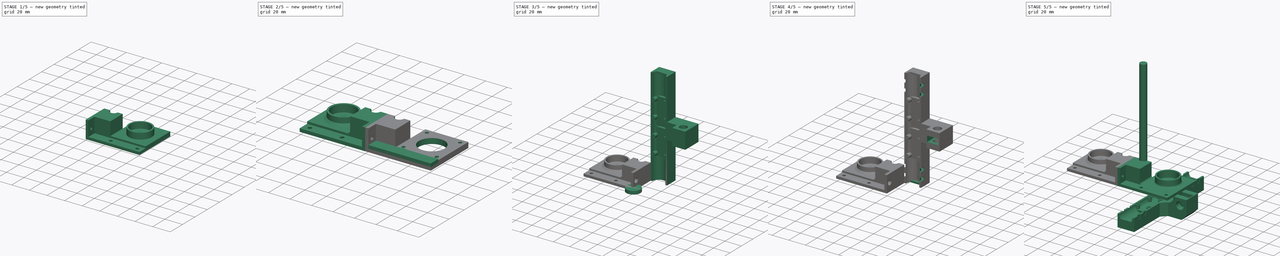
[diagram: build sequence overview — one tinted view per stage of 5, left to right]
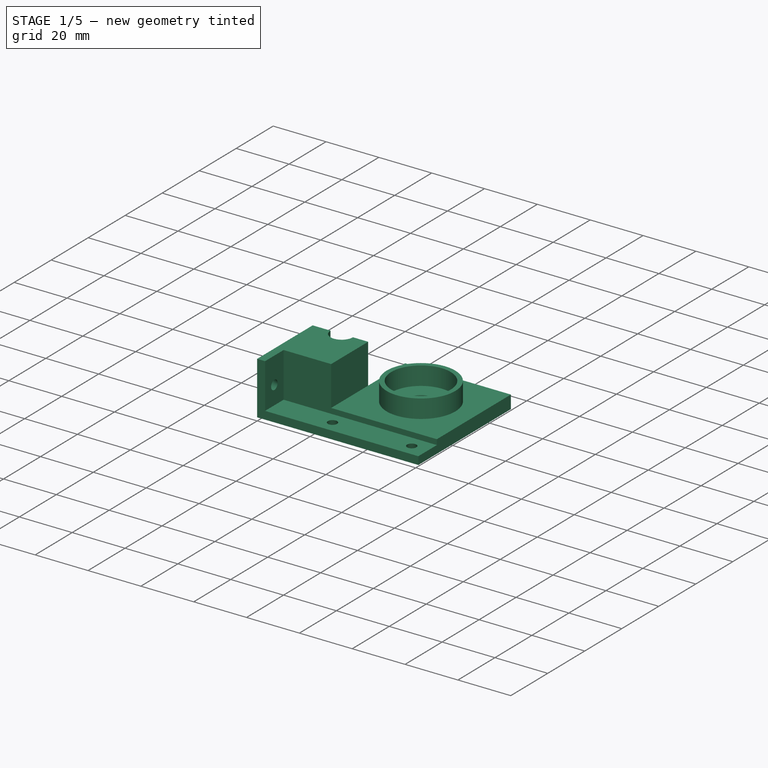
[diagram: stage 1 of 5 — iso view after this stage's code; geometry added in this stage tinted green]
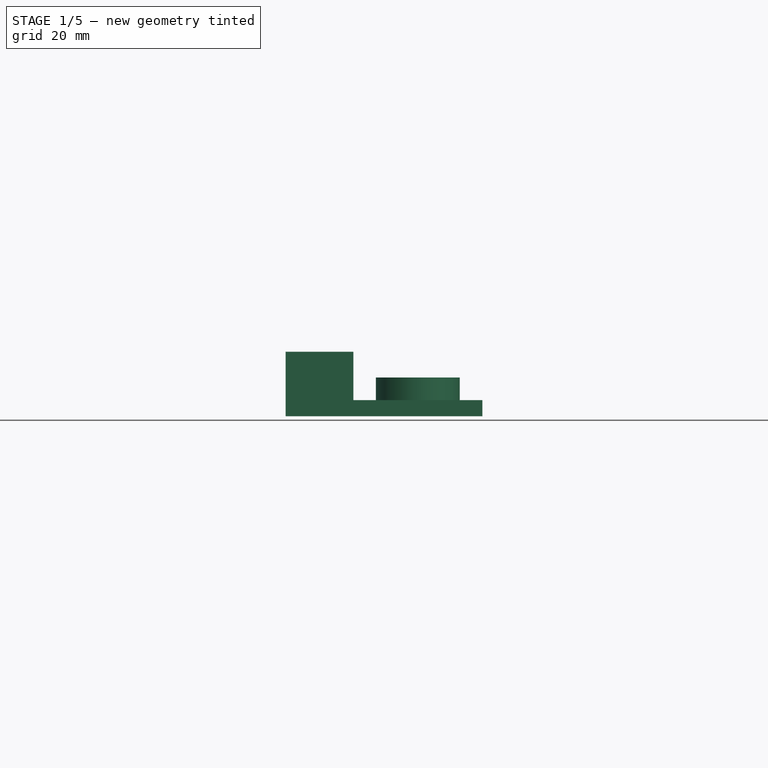
[diagram: stage 1 of 5 — front view after this stage's code; geometry added in this stage tinted green]
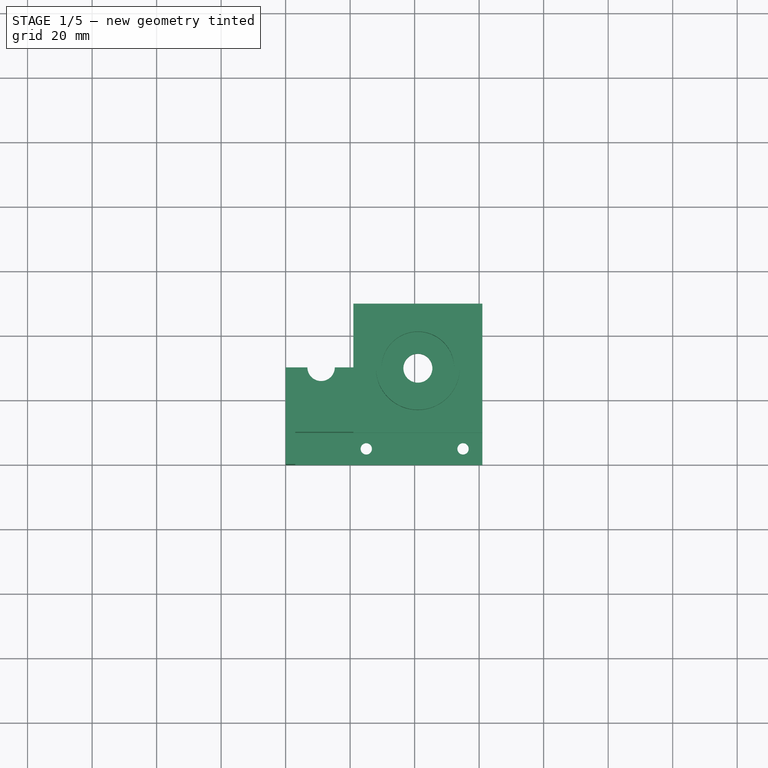
[diagram: stage 1 of 5 — top view after this stage's code; geometry added in this stage tinted green]
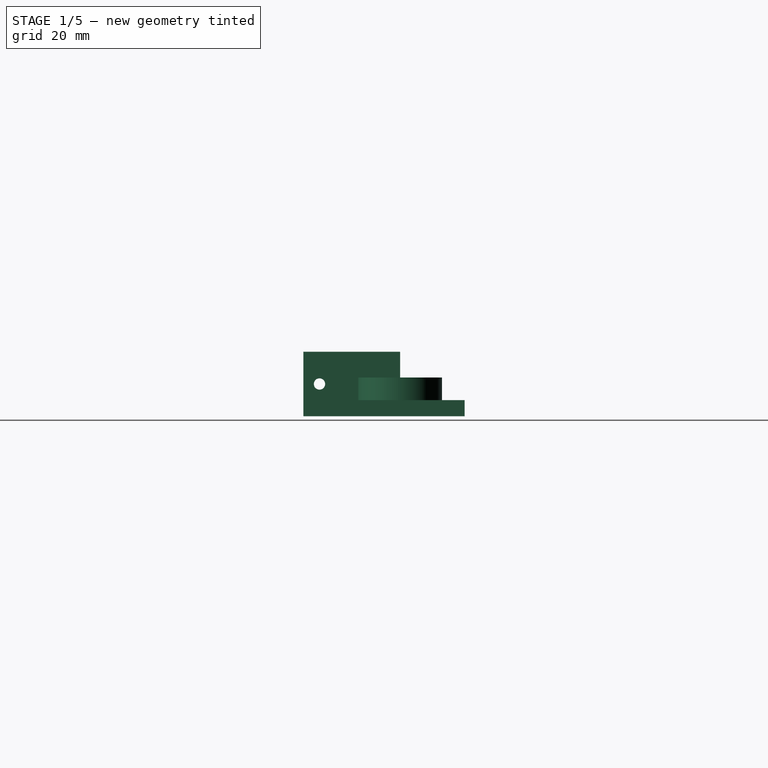
[diagram: stage 1 of 5 — right view after this stage's code; geometry added in this stage tinted green]
FCSTD DOCUMENT  (FreeCAD 0.15R4671 (Git))
Label: x-axis
License: CC-BY 3.0
LicenseURL: http://creativecommons.org/licenses/by/3.0/
objects: Part::Cut×38, Part::Cylinder×31, Part::Box×9, Part::Cone×6, Part::Chamfer×6, Sketcher::SketchObject×5, PartDesign::Pad×5, Part::Fillet×3, Part::MultiFuse×3, Part::Mirroring×2
note: 113 computed .brp shape members not serialized (recipe doc carries the construction recipe); baked Part::Feature solids carry a one-line shape summary decoded from their .brp

FEATURE [Part::Box] Box009  label="espai-fusta001"
  Height = 3
  Length = 58
  Placement = pos=(3,0,3) rot=(0,0,1;0rad)
  Width = 10
FEATURE [Part::Cone] Cone003  label="Cone-forat-cargol004"
  Angle = 360
  Height = 3
  Placement = pos=(25,5,0) rot=(0,0,1;0rad)
  Radius1 = 3
  Radius2 = 1.75
FEATURE [Part::Cone] Cone004  label="Cone-forat-cargol005"
  Angle = 360
  Height = 3
  Placement = pos=(55,5,0) rot=(0,0,1;0rad)
  Radius1 = 3
  Radius2 = 1.75
FEATURE [Part::Cylinder] Cylinder027  label="Cyl-brida-ext005"
  Angle = 360
  Height = 4
  Radius = 8
FEATURE [Part::Cone] Cone005  label="Cone-forat-cargol006"
  Angle = 360
  Height = 3
  Placement = pos=(0,5,10) rot=(0,1,0;1.5708rad)
  Radius1 = 3
  Radius2 = 1.75
FEATURE [Part::Cylinder] Cylinder028  label="Cyl-brida-int005"
  Angle = 360
  Height = 4
  Radius = 6
FEATURE [Part::Cut] Cut035  label="espai-brida007"
  Base = -> Cylinder027
  Placement = pos=(10,30,4) rot=(0,0,1;0rad)
  Tool = -> Cylinder028
FEATURE [Sketcher::SketchObject] Sketch003  label="Sketch-perfil-retalla001"
  Placement = pos=(0,0,5) rot=(0,0,1;0rad)
  sketch-geometry (6):
    g0: LineSegment StartX=3 StartY=10 StartZ=0 EndX=21 EndY=10 EndZ=0
    g1: LineSegment StartX=61 StartY=50 StartZ=0 EndX=61 EndY=0 EndZ=0
    g2: LineSegment StartX=61 StartY=0 StartZ=0 EndX=3 EndY=0 EndZ=0
    g3: LineSegment StartX=3 StartY=0 StartZ=0 EndX=3 EndY=10 EndZ=0
    g4: LineSegment StartX=21 StartY=50 StartZ=0 EndX=61 EndY=50 EndZ=0
    g5: LineSegment StartX=21 StartY=50 StartZ=0 EndX=21 EndY=10 EndZ=0
  constraints (18):
    c: Coincident(g1,g2)
    c: Coincident(g2,g3)
    c: Coincident(g3,g0)
    c: Horizontal(g0)
    c: Horizontal(g2)
    c: Vertical(g1)
    c: Vertical(g3)
    c: PointOnObject(g1,g-1)
    c: DistanceX(g-1,g2) = 3
    c: DistanceY(g3) = 10
    c: DistanceY(g1) = -50
    c: DistanceX(g2) = -58
    c: Horizontal(g4)
    c: Coincident(g4,g1)
    c: DistanceX(g4) = 40
    c: Vertical(g5)
    c: Coincident(g5,g4)
    c: Coincident(g5,g0)
FEATURE [PartDesign::Pad] Pad003  label="Pad-perfil-retalla001"
  Length = 15
  Length2 = 100
  Placement = pos=(0,0,5) rot=(0,0,1;0rad)
  Sketch = -> Sketch003
  Type = 0
FEATURE [Part::Cut] Cut036  label="espai-brida008"
  Base = -> Cylinder027
  Placement = pos=(10,30,12) rot=(0,0,1;0rad)
  Tool = -> Cylinder028
FEATURE [Sketcher::SketchObject] Sketch004  label="Sketch-perfil-base001"
  sketch-geometry (9):
    g0: Circle CenterX=41 CenterY=30 CenterZ=0 NormalX=0 NormalY=0 NormalZ=1 Radius=4.5
    g1: ArcOfCircle CenterX=11 CenterY=30 CenterZ=0 NormalX=0 NormalY=0 NormalZ=1 Radius=4.25 StartAngle=3.14159 EndAngle=6.28319
    g2: LineSegment StartX=6.75 StartY=30 StartZ=0 EndX=0 EndY=30 EndZ=0
    g3: LineSegment StartX=0 StartY=30 StartZ=0 EndX=0 EndY=0 EndZ=0
    g4: LineSegment StartX=0 StartY=0 StartZ=0 EndX=61 EndY=0 EndZ=0
    g5: LineSegment StartX=15.25 StartY=30 StartZ=0 EndX=21 EndY=30 EndZ=0
    g6: LineSegment StartX=21 StartY=30 StartZ=0 EndX=21 EndY=50 EndZ=0
    g7: LineSegment StartX=21 StartY=50 StartZ=0 EndX=61 EndY=50 EndZ=0
    g8: LineSegment StartX=61 StartY=50 StartZ=0 EndX=61 EndY=0 EndZ=0
  constraints (27):
    c: Radius(g0) = 4.5
    c: Radius(g1) = 4.25
    c: DistanceX(g1,g0) = 30
    c: Coincident(g2,g1)
    c: PointOnObject(g2,g-2)
    c: Horizontal(g2)
    c: Coincident(g3,g2)
    c: Coincident(g3,g-1)
    c: Coincident(g4,g-1)
    c: Horizontal(g4)
    c: Coincident(g5,g1)
    c: Horizontal(g5)
    c: Coincident(g6,g5)
    c: Vertical(g6)
    c: Coincident(g7,g6)
    c: Horizontal(g7)
    c: Coincident(g8,g7)
    c: Vertical(g8)
    c: Coincident(g4,g8)
    c: DistanceY(g3) = -30
    c: DistanceY(g-1,g1) = 30
    c: DistanceY(g-1,g0) = 30
    c: DistanceX(g7) = 40
    c: DistanceX(g0,g7) = 20
    c: DistanceX(g1,g2) = -11
    c: DistanceY(g7,g4) = -50
    c: DistanceY(g-1,g5) = 30
FEATURE [PartDesign::Pad] Pad004  label="Pad-perfil-base001"
  Length = 20
  Length2 = 100
  Sketch = -> Sketch004
  Type = 0
FEATURE [Part::Cut] Cut034
  Base = -> Pad004
  Tool = -> Pad003
FEATURE [Part::Cut] Cut033
  Base = -> Cut034
  Tool = -> Cut035
FEATURE [Part::Cut] Cut032
  Base = -> Cut033
  Tool = -> Cut036
FEATURE [Part::Cut] Cut030
  Base = -> Cut032
  Tool = -> Cone005
FEATURE [Part::Cut] Cut029
  Base = -> Cut030
  Tool = -> Cone003
FEATURE [Part::Cut] Cut028  label="forma-amb-forats001"
  Base = -> Cut029
  Tool = -> Cone004
FEATURE [Part::Cut] Cut031  label="y-end-idler-basic"
  Base = -> Cut028
  Tool = -> Box009
FEATURE [Part::Cylinder] Cylinder029  label="espai-608-int"
  Angle = 360
  Height = 7
  Radius = 11.25
FEATURE [Part::Cylinder] Cylinder030  label="espai-608-ext"
  Angle = 360
  Height = 7
  Radius = 13
FEATURE [Part::Cut] Cut037  label="espai-608"
  Base = -> Cylinder030
  Placement = pos=(41,30,5) rot=(0,0,1;0rad)
  Tool = -> Cylinder029
FEATURE [Part::MultiFuse] Fusion002  label="y-end-idler-no-arrod"
  Shapes = -> [Cut031,Cut037]
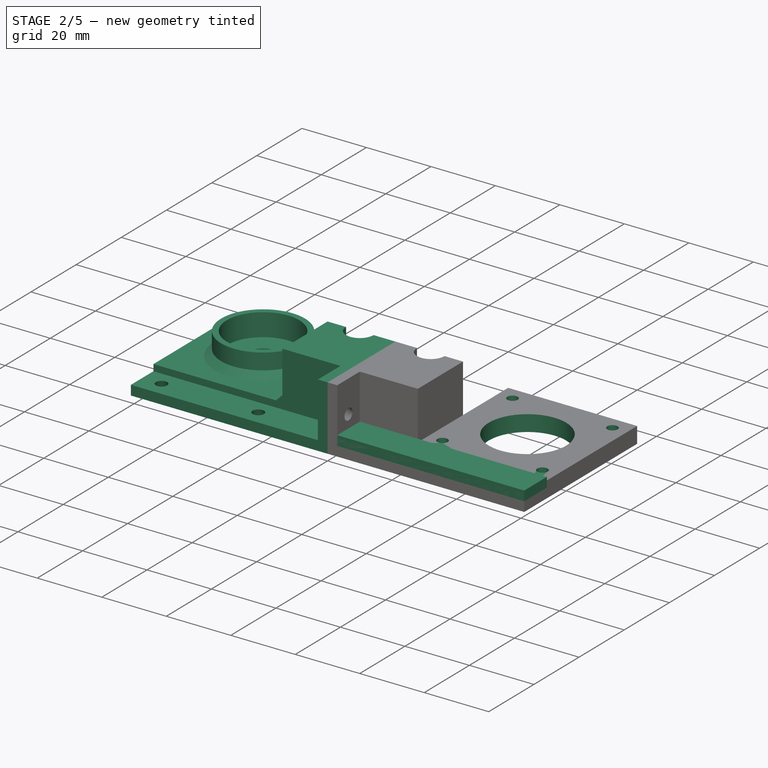
[diagram: stage 2 of 5 — iso view after this stage's code; geometry added in this stage tinted green]
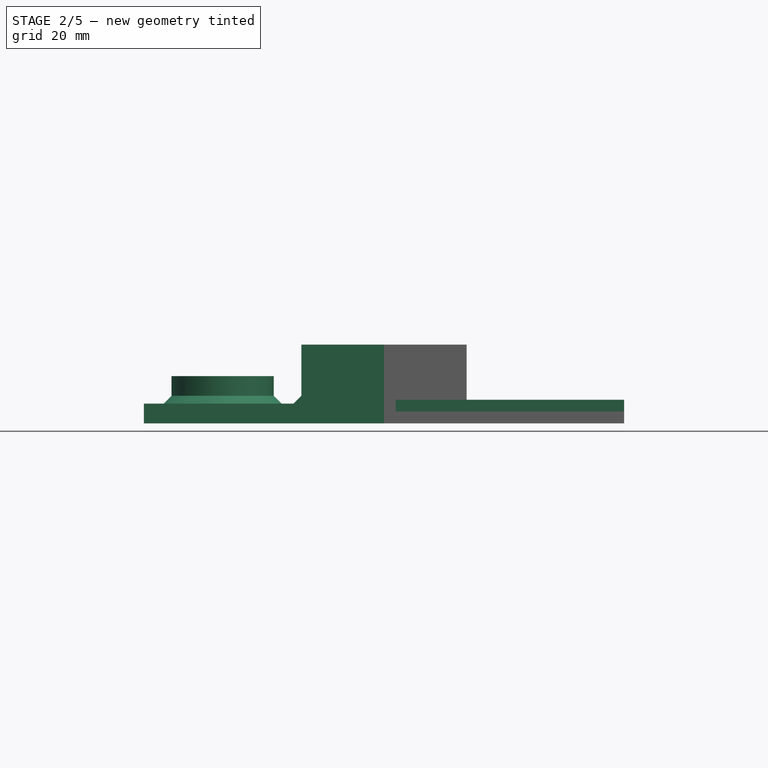
[diagram: stage 2 of 5 — front view after this stage's code; geometry added in this stage tinted green]
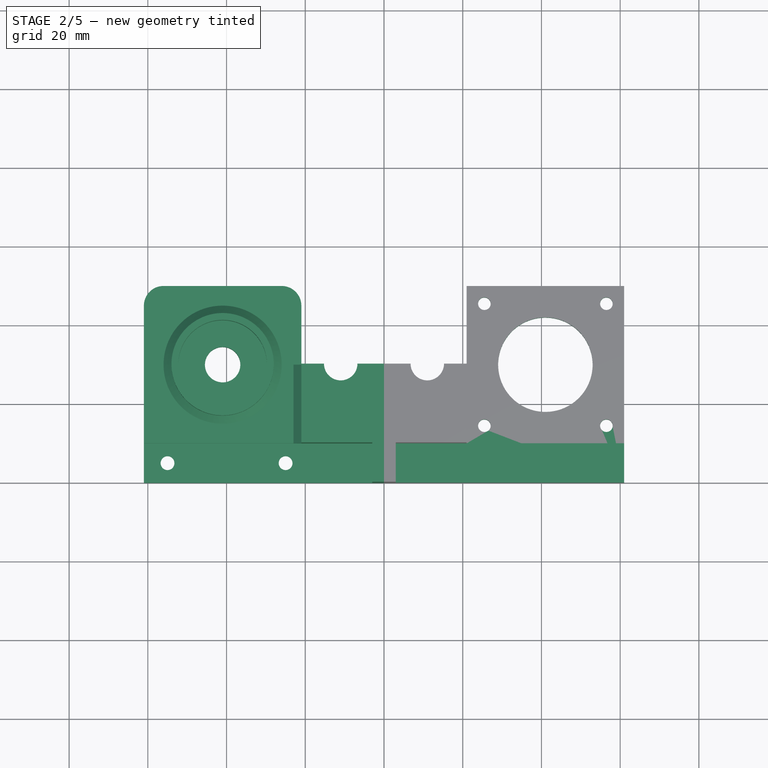
[diagram: stage 2 of 5 — top view after this stage's code; geometry added in this stage tinted green]
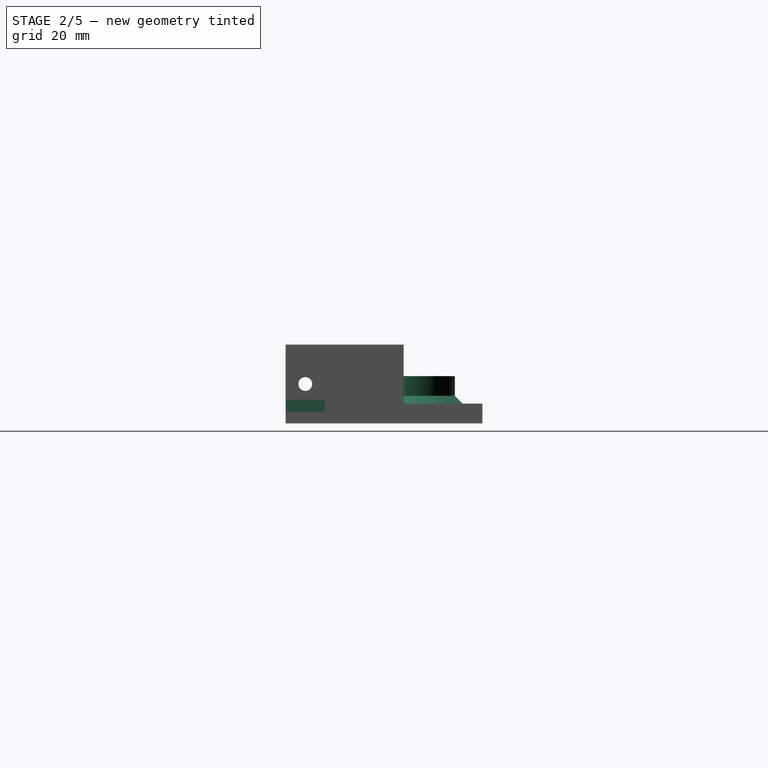
[diagram: stage 2 of 5 — right view after this stage's code; geometry added in this stage tinted green]
FEATURE [Sketcher::SketchObject] Sketch  label="Sketch-perfil-base"
  sketch-geometry (15):
    g0: Circle CenterX=41 CenterY=30 CenterZ=0 NormalX=0 NormalY=0 NormalZ=1 Radius=12
    g1: ArcOfCircle CenterX=11 CenterY=30 CenterZ=0 NormalX=0 NormalY=0 NormalZ=1 Radius=4.25 StartAngle=3.14159 EndAngle=6.28319
    g2: LineSegment StartX=6.75 StartY=30 StartZ=0 EndX=0 EndY=30 EndZ=0
    g3: LineSegment StartX=0 StartY=30 StartZ=0 EndX=0 EndY=0 EndZ=0
    g4: LineSegment StartX=0 StartY=0 StartZ=0 EndX=61 EndY=0 EndZ=0
    g5: LineSegment StartX=15.25 StartY=30 StartZ=0 EndX=21 EndY=30 EndZ=0
    g6: LineSegment StartX=21 StartY=30 StartZ=0 EndX=21 EndY=50 EndZ=0
    g7: LineSegment StartX=21 StartY=50 StartZ=0 EndX=61 EndY=50 EndZ=0
    g8: LineSegment StartX=61 StartY=50 StartZ=0 EndX=61 EndY=0 EndZ=0
    g9: Circle CenterX=25.5003 CenterY=45.5003 CenterZ=0 NormalX=0 NormalY=0 NormalZ=1 Radius=1.6
    g10: Circle CenterX=25.4997 CenterY=14.5003 CenterZ=0 NormalX=0 NormalY=0 NormalZ=1 Radius=1.6
    g11: Circle CenterX=56.4997 CenterY=14.4997 CenterZ=0 NormalX=0 NormalY=0 NormalZ=1 Radius=1.6
    g12: Circle CenterX=56.5003 CenterY=45.4997 CenterZ=0 NormalX=0 NormalY=0 NormalZ=1 Radius=1.6
    g13: LineSegment [constr] StartX=25.4997 StartY=14.5003 StartZ=0 EndX=56.5003 EndY=45.4997 EndZ=0
    g14: LineSegment [constr] StartX=25.5003 StartY=45.5003 StartZ=0 EndX=56.4997 EndY=14.4997 EndZ=0
  constraints (43):
    c: Radius(g0) = 12
    c: Radius(g1) = 4.25
    c: DistanceX(g1,g0) = 30
    c: Coincident(g2,g1)
    c: PointOnObject(g2,g-2)
    c: Horizontal(g2)
    c: Coincident(g3,g2)
    c: Coincident(g3,g-1)
    c: Coincident(g4,g-1)
    c: Horizontal(g4)
    c: Coincident(g5,g1)
    c: Horizontal(g5)
    c: Coincident(g6,g5)
    c: Vertical(g6)
    c: Coincident(g7,g6)
    c: Horizontal(g7)
    c: Coincident(g8,g7)
    c: Vertical(g8)
    c: Coincident(g4,g8)
    c: DistanceY(g3) = -30
    c: DistanceY(g-1,g1) = 30
    c: DistanceY(g-1,g0) = 30
    c: DistanceX(g7) = 40
    c: DistanceX(g0,g7) = 20
    c: DistanceX(g1,g2) = -11
    c: DistanceY(g7,g4) = -50
    c: DistanceY(g-1,g5) = 30
    c: Radius(g9) = 1.6
    c: Equal(g9,g10)
    c: Equal(g11,g9)
    c: Equal(g12,g9)
    c: Coincident(g13,g10)
    c: Coincident(g13,g12)
    c: PointOnObject(g0,g13)
    c: Coincident(g14,g11)
    c: Coincident(g14,g9)
    c: PointOnObject(g0,g14)
    c: Perpendicular(g13,g14)
    c: Equal(g14,g13)
    c: DistanceX(g9,g12) = 31
    c: DistanceY(g11,g12) = 31
    c: Symmetric(g11,g9,g13)
    c: Symmetric(g10,g12,g14)
FEATURE [PartDesign::Pad] Pad  label="Pad-perfil-base"
  Length = 20
  Length2 = 100
  Sketch = -> Sketch
  Type = 0
FEATURE [Sketcher::SketchObject] Sketch001  label="Sketch-perfil-retalla"
  Placement = pos=(0,0,5) rot=(0,0,1;0rad)
  sketch-geometry (6):
    g0: LineSegment StartX=3 StartY=10 StartZ=0 EndX=21 EndY=10 EndZ=0
    g1: LineSegment StartX=61 StartY=50 StartZ=0 EndX=61 EndY=0 EndZ=0
    g2: LineSegment StartX=61 StartY=0 StartZ=0 EndX=3 EndY=0 EndZ=0
    g3: LineSegment StartX=3 StartY=0 StartZ=0 EndX=3 EndY=10 EndZ=0
    g4: LineSegment StartX=21 StartY=50 StartZ=0 EndX=61 EndY=50 EndZ=0
    g5: LineSegment StartX=21 StartY=50 StartZ=0 EndX=21 EndY=10 EndZ=0
  constraints (18):
    c: Coincident(g1,g2)
    c: Coincident(g2,g3)
    c: Coincident(g3,g0)
    c: Horizontal(g0)
    c: Horizontal(g2)
    c: Vertical(g1)
    c: Vertical(g3)
    c: PointOnObject(g1,g-1)
    c: DistanceX(g-1,g2) = 3
    c: DistanceY(g3) = 10
    c: DistanceY(g1) = -50
    c: DistanceX(g2) = -58
    c: Horizontal(g4)
    c: Coincident(g4,g1)
    c: DistanceX(g4) = 40
    c: Vertical(g5)
    c: Coincident(g5,g4)
    c: Coincident(g5,g0)
FEATURE [PartDesign::Pad] Pad001  label="Pad-perfil-retalla"
  Length = 15
  Length2 = 100
  Placement = pos=(0,0,5) rot=(0,0,1;0rad)
  Sketch = -> Sketch001
  Type = 0
FEATURE [Part::Cut] Cut
  Base = -> Pad
  Tool = -> Pad001
FEATURE [Part::Cylinder] Cylinder  label="Cyl-brida-ext"
  Angle = 360
  Height = 4
  Radius = 8
FEATURE [Part::Cylinder] Cylinder001  label="Cyl-brida-int"
  Angle = 360
  Height = 4
  Radius = 6
FEATURE [Part::Cut] Cut001  label="espai-brida001"
  Base = -> Cylinder
  Placement = pos=(10,30,4) rot=(0,0,1;0rad)
  Tool = -> Cylinder001
FEATURE [Part::Cut] Cut002  label="espai-brida002"
  Base = -> Cylinder
  Placement = pos=(10,30,12) rot=(0,0,1;0rad)
  Tool = -> Cylinder001
FEATURE [Part::Cut] Cut003
  Base = -> Cut
  Tool = -> Cut001
FEATURE [Part::Cut] Cut004
  Base = -> Cut003
  Tool = -> Cut002
FEATURE [Part::Cone] Cone  label="Cone-forat-cargol001"
  Angle = 360
  Height = 3
  Placement = pos=(0,5,10) rot=(0,1,0;1.5708rad)
  Radius1 = 3
  Radius2 = 1.75
FEATURE [Part::Cone] Cone001  label="Cone-forat-cargol002"
  Angle = 360
  Height = 3
  Placement = pos=(25,5,0) rot=(0,0,1;0rad)
  Radius1 = 3
  Radius2 = 1.75
FEATURE [Part::Cone] Cone002  label="Cone-forat-cargol003"
  Angle = 360
  Height = 3
  Placement = pos=(55,5,0) rot=(0,0,1;0rad)
  Radius1 = 3
  Radius2 = 1.75
FEATURE [Part::Cut] Cut005
  Base = -> Cut004
  Tool = -> Cone
FEATURE [Part::Cut] Cut006
  Base = -> Cut005
  Tool = -> Cone001
FEATURE [Part::Cut] Cut007  label="forma-amb-forats"
  Base = -> Cut006
  Tool = -> Cone002
FEATURE [Part::Box] Box008  label="espai-fusta"
  Height = 3
  Length = 58
  Placement = pos=(3,0,3) rot=(0,0,1;0rad)
  Width = 10
FEATURE [Part::Chamfer] Chamfer004
  Base = -> Fusion002
  Edges = 1 edges r=2: [Edge53]
FEATURE [Part::Chamfer] Chamfer005  label="y-end-idler-no-arrod-del-tot"
  Base = -> Chamfer004
  Edges = 1 edges r=2: [Edge31]
FEATURE [Part::Fillet] Fillet003  label="y-end-idler"
  Base = -> Chamfer005
  Edges = 2 edges r=5: [Edge21,Edge36]
FEATURE [Part::Mirroring] Part__Mirroring001  label="y-end-idler (Mirror #2)"
  Base = (0,0,0)
  Normal = (1,0,0)
  Source = -> Fillet003
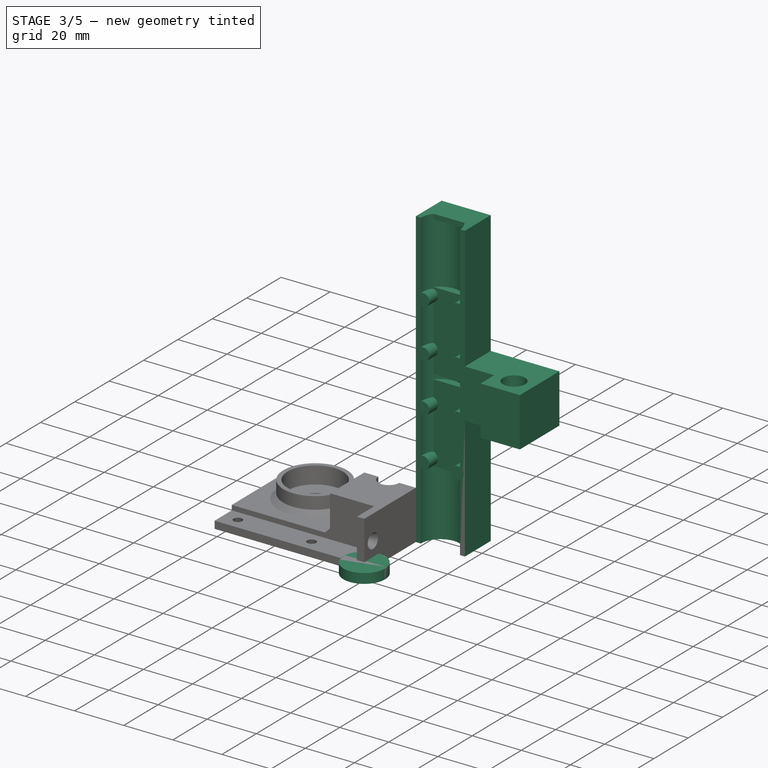
[diagram: stage 3 of 5 — iso view after this stage's code; geometry added in this stage tinted green]
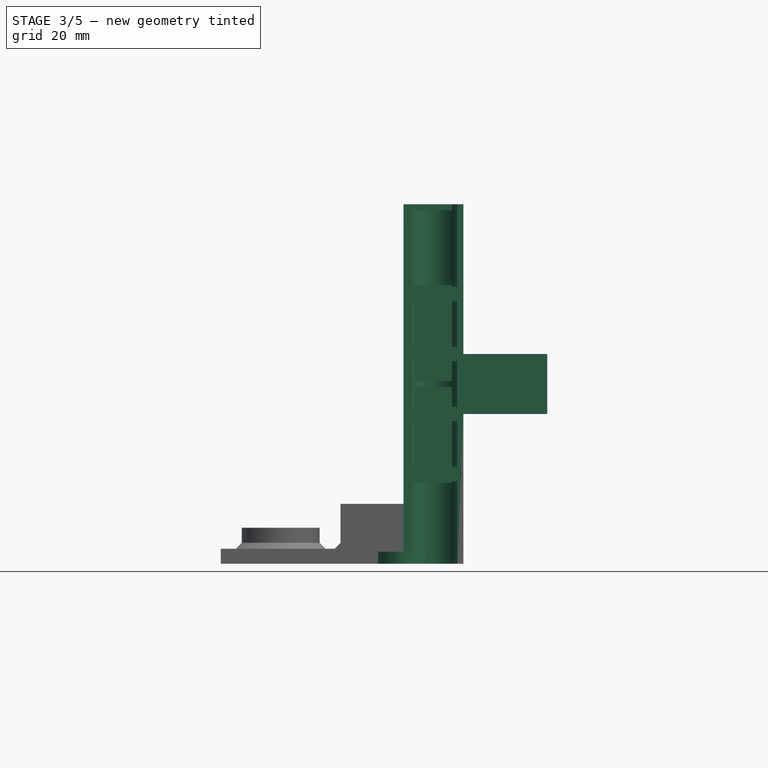
[diagram: stage 3 of 5 — front view after this stage's code; geometry added in this stage tinted green]
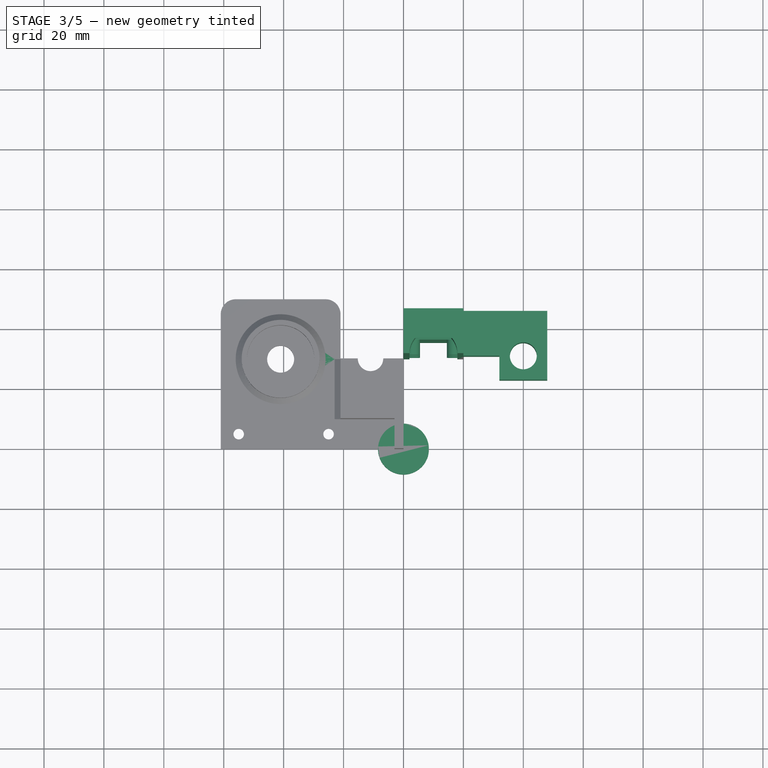
[diagram: stage 3 of 5 — top view after this stage's code; geometry added in this stage tinted green]
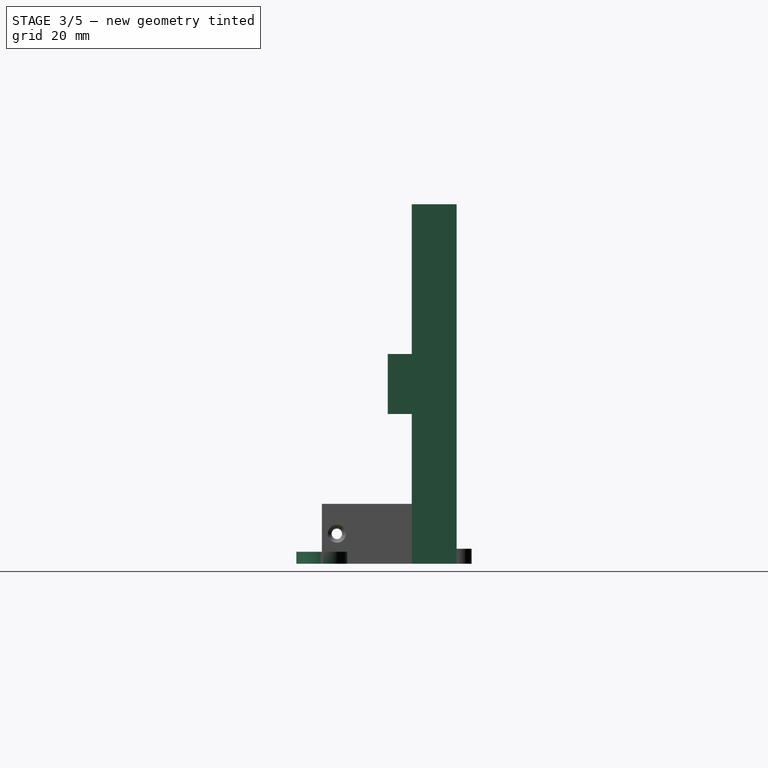
[diagram: stage 3 of 5 — right view after this stage's code; geometry added in this stage tinted green]
FEATURE [Sketcher::SketchObject] Sketch002  label="Sketch-perfil-base-carro"
  sketch-geometry (9):
    g0: Circle CenterX=40 CenterY=30 CenterZ=0 NormalX=0 NormalY=0 NormalZ=1 Radius=4.5
    g1: ArcOfCircle CenterX=10 CenterY=30 CenterZ=0 NormalX=0 NormalY=0 NormalZ=1 Radius=8 StartAngle=0 EndAngle=3.14159
    g2: LineSegment StartX=0 StartY=45 StartZ=0 EndX=48 EndY=45 EndZ=0
    g3: LineSegment StartX=48 StartY=45 StartZ=0 EndX=48 EndY=22 EndZ=0
    g4: LineSegment StartX=0 StartY=45 StartZ=0 EndX=0 EndY=30 EndZ=0
    g5: LineSegment StartX=0 StartY=30 StartZ=0 EndX=2 EndY=30 EndZ=0
    g6: LineSegment StartX=18 StartY=30 StartZ=0 EndX=32 EndY=30 EndZ=0
    g7: LineSegment StartX=32 StartY=30 StartZ=0 EndX=32 EndY=22 EndZ=0
    g8: LineSegment StartX=32 StartY=22 StartZ=0 EndX=48 EndY=22 EndZ=0
  constraints (28):
    c: Radius(g0) = 4.5
    c: Radius(g1) = 8
    c: DistanceX(g1,g0) = 30
    c: Horizontal(g2)
    c: Coincident(g3,g2)
    c: Vertical(g3)
    c: DistanceY(g-1,g1) = 30
    c: DistanceY(g-1,g0) = 30
    c: DistanceX(g-1,g1) = 10
    c: PointOnObject(g2,g-2)
    c: Coincident(g4,g2)
    c: PointOnObject(g4,g-2)
    c: Coincident(g5,g4)
    c: Coincident(g5,g1)
    c: Coincident(g6,g1)
    c: Horizontal(g6)
    c: Coincident(g7,g6)
    c: Vertical(g7)
    c: Coincident(g8,g7)
    c: Coincident(g8,g3)
    c: Horizontal(g8)
    c: DistanceY(g2,g4) = -15
    c: Horizontal(g5)
    c: DistanceY(g-1,g4) = 30
    c: DistanceY(g3) = -23
    c: DistanceX(g0,g2) = 8
    c: DistanceX(g0,g7) = -8
    c: DistanceY(g-1,g1) = 30
FEATURE [PartDesign::Pad] Pad002
  Length = 120
  Length2 = 100
  Sketch = -> Sketch002
  Type = 0
FEATURE [Part::Cylinder] Cylinder003  label="Cyl-brida-int001"
  Angle = 360
  Height = 4
  Radius = 8.5
FEATURE [Part::Box] Box  label="Cube-treu-espai"
  Height = 50
  Length = 30
  Placement = pos=(20,18,0) rot=(0,0,1;0rad)
  Width = 28
FEATURE [Part::Box] Box001  label="Cube-treu-espai001"
  Height = 50
  Length = 30
  Placement = pos=(20,18,70) rot=(0,0,1;0rad)
  Width = 28
FEATURE [Part::Cut] Cut009
  Base = -> Pad002
  Tool = -> Box
FEATURE [Part::Cut] Cut010
  Base = -> Cut009
  Tool = -> Box001
FEATURE [Part::Box] Box003  label="barrera-rodament001"
  Height = 2
  Length = 20
  Placement = pos=(0,35,118) rot=(0,0,1;0rad)
  Width = 5
FEATURE [Part::Box] Box004  label="barrera-rodament002"
  Height = 32
  Length = 20
  Placement = pos=(0,35,27) rot=(0,0,1;0rad)
  Width = 5
FEATURE [Part::Box] Box007  label="barrera-rodament003"
  Height = 32
  Length = 20
  Placement = pos=(0,35,61) rot=(0,0,1;0rad)
  Width = 5
FEATURE [Part::Cylinder] Cylinder012  label="col-cargol-M3-001"
  Angle = 360
  Height = 15
  Placement = pos=(3,30,30) rot=(-1,0,0;1.5708rad)
  Radius = 2.5
FEATURE [Part::Cylinder] Cylinder013  label="col-cargol-M3-002"
  Angle = 360
  Height = 15
  Placement = pos=(17,30,30) rot=(-1,0,0;1.5708rad)
  Radius = 2.5
FEATURE [Part::Cylinder] Cylinder015  label="col-cargol-M3-003"
  Angle = 360
  Height = 15
  Placement = pos=(17,30,50) rot=(-1,0,0;1.5708rad)
  Radius = 2.5
FEATURE [Part::Cylinder] Cylinder017  label="col-cargol-M3-004"
  Angle = 360
  Height = 15
  Placement = pos=(3,30,50) rot=(-1,0,0;1.5708rad)
  Radius = 2.5
FEATURE [Part::Cylinder] Cylinder019  label="col-cargol-M3-005"
  Angle = 360
  Height = 15
  Placement = pos=(3,30,90) rot=(-1,0,0;1.5708rad)
  Radius = 2.5
FEATURE [Part::Cylinder] Cylinder020  label="col-cargol-M3-006"
  Angle = 360
  Height = 15
  Placement = pos=(17,30,90) rot=(-1,0,0;1.5708rad)
  Radius = 2.5
FEATURE [Part::Cylinder] Cylinder021  label="col-cargol-M3-007"
  Angle = 360
  Height = 15
  Placement = pos=(17,30,70) rot=(-1,0,0;1.5708rad)
  Radius = 2.5
FEATURE [Part::Cylinder] Cylinder022  label="col-cargol-M3-008"
  Angle = 360
  Height = 15
  Placement = pos=(3,30,70) rot=(-1,0,0;1.5708rad)
  Radius = 2.5
FEATURE [Part::Cut] Cut027
  Base = -> Cut007
  Tool = -> Box008
FEATURE [Part::Chamfer] Chamfer003
  Base = -> Cut027
  Edges = 1 edges r=2: [Edge57]
FEATURE [Part::Fillet] Fillet  label="y-end-motor"
  Base = -> Chamfer003
  Edges = 2 edges r=5: [Edge39,Edge80]
FEATURE [Part::Mirroring] Part__Mirroring  label="y-end-motor (Mirror #2)"
  Base = (0,0,0)
  Normal = (1,0,0)
  Source = -> Fillet
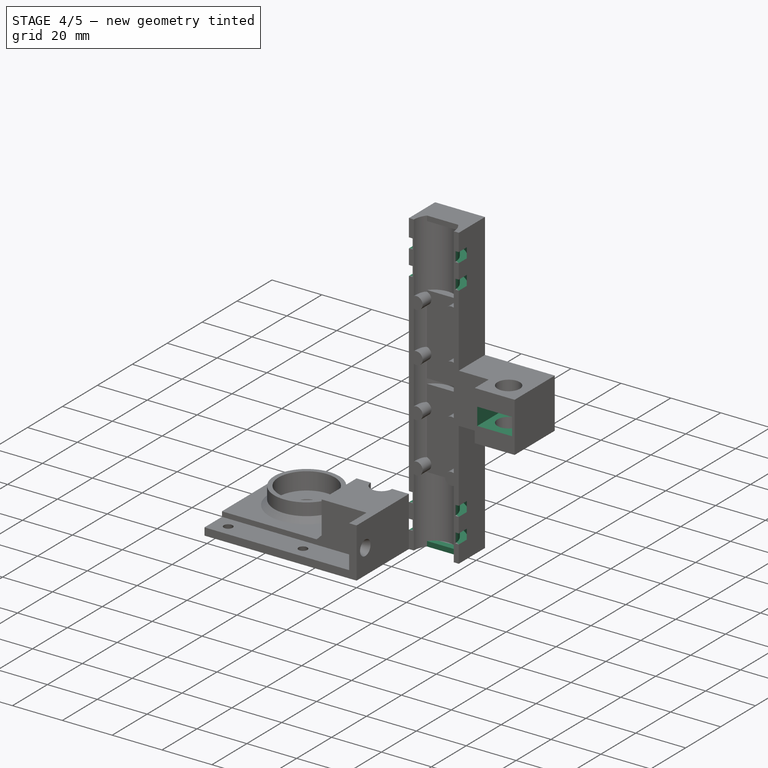
[diagram: stage 4 of 5 — iso view after this stage's code; geometry added in this stage tinted green]
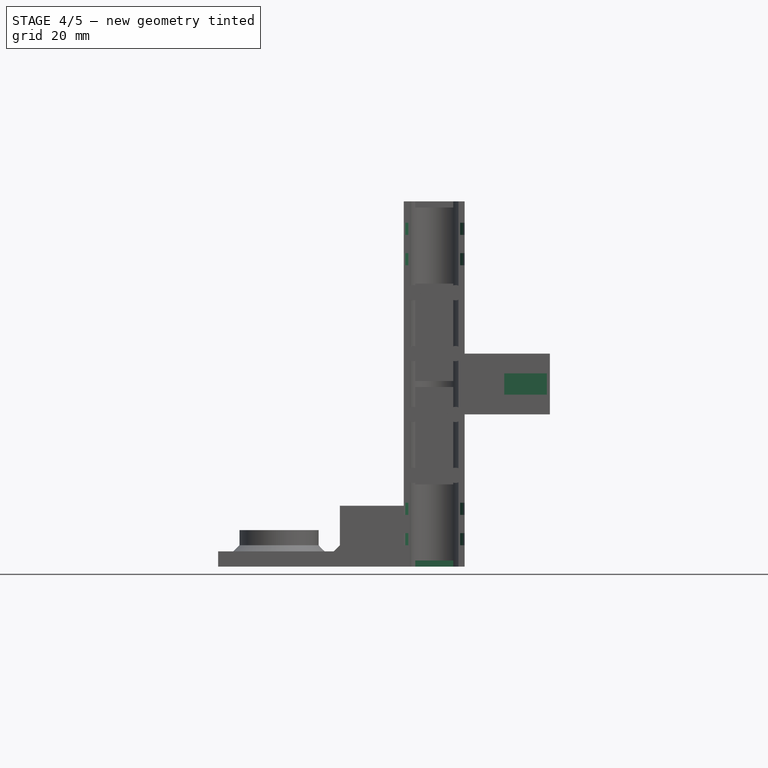
[diagram: stage 4 of 5 — front view after this stage's code; geometry added in this stage tinted green]
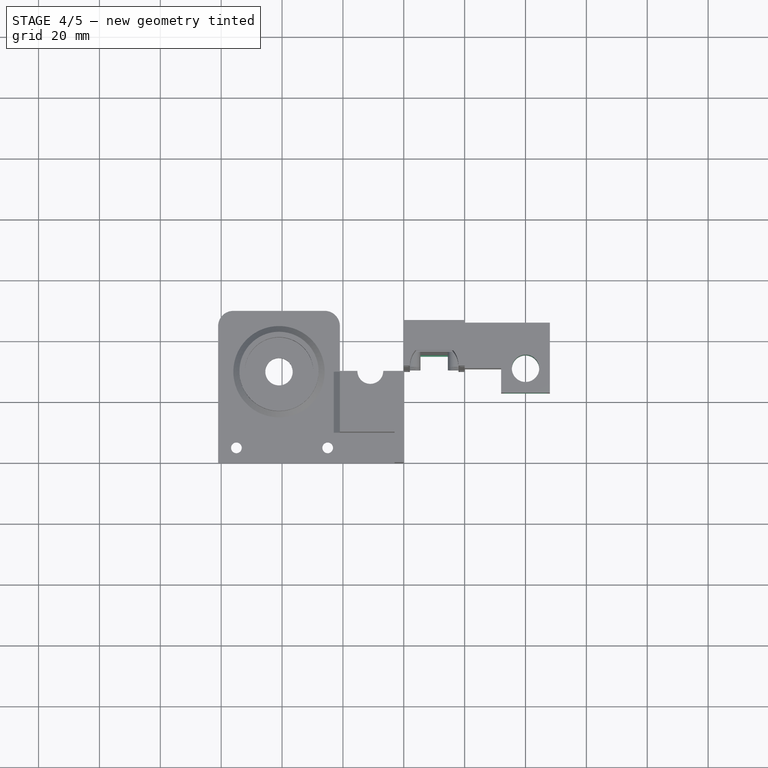
[diagram: stage 4 of 5 — top view after this stage's code; geometry added in this stage tinted green]
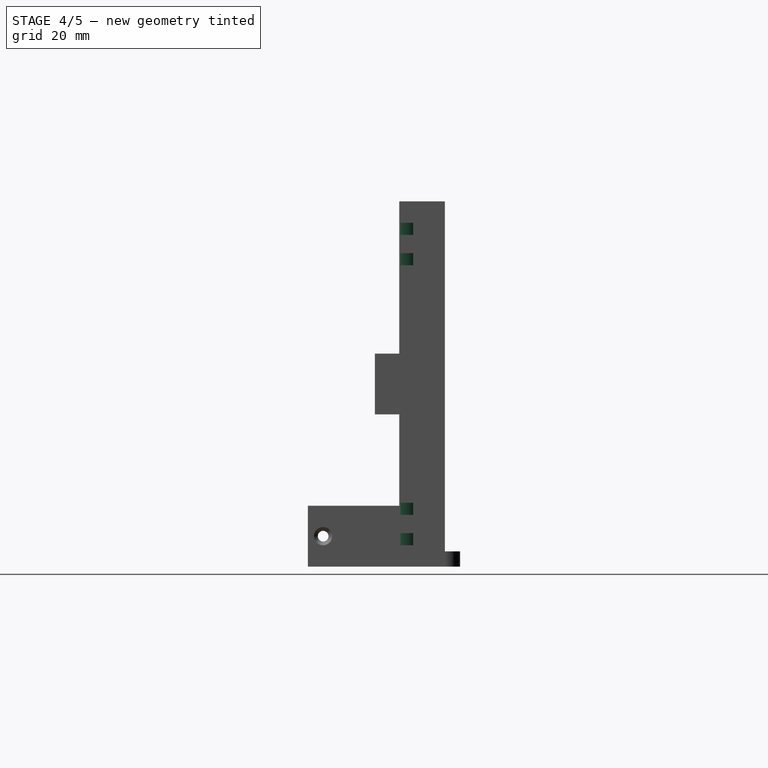
[diagram: stage 4 of 5 — right view after this stage's code; geometry added in this stage tinted green]
FEATURE [Part::Cylinder] Cylinder002  label="Cyl-brida-ext001"
  Angle = 360
  Height = 4
  Radius = 11
FEATURE [Part::Cut] Cut008  label="espai-brida003"
  Base = -> Cylinder002
  Placement = pos=(10,30,7) rot=(0,0,1;0rad)
  Tool = -> Cylinder003
FEATURE [Part::Cylinder] Cylinder004  label="Cyl-brida-int002"
  Angle = 360
  Height = 4
  Radius = 8.5
FEATURE [Part::Cylinder] Cylinder005  label="Cyl-brida-ext002"
  Angle = 360
  Height = 4
  Radius = 11
FEATURE [Part::Cut] Cut011  label="espai-brida004"
  Base = -> Cylinder005
  Placement = pos=(10,30,17) rot=(0,0,1;0rad)
  Tool = -> Cylinder004
FEATURE [Part::Cylinder] Cylinder006  label="Cyl-brida-int003"
  Angle = 360
  Height = 4
  Radius = 8.5
FEATURE [Part::Cylinder] Cylinder007  label="Cyl-brida-ext003"
  Angle = 360
  Height = 4
  Radius = 11
FEATURE [Part::Cut] Cut012  label="espai-brida005"
  Base = -> Cylinder007
  Placement = pos=(10,30,99) rot=(0,0,1;0rad)
  Tool = -> Cylinder006
FEATURE [Part::Cylinder] Cylinder008  label="Cyl-brida-int004"
  Angle = 360
  Height = 4
  Radius = 8.5
FEATURE [Part::Cylinder] Cylinder009  label="Cyl-brida-ext004"
  Angle = 360
  Height = 4
  Radius = 11
FEATURE [Part::Cut] Cut013  label="espai-brida006"
  Base = -> Cylinder009
  Placement = pos=(10,30,109) rot=(0,0,1;0rad)
  Tool = -> Cylinder008
FEATURE [Part::Box] Box002  label="barrera-rodament"
  Height = 2
  Length = 20
  Placement = pos=(0,35,0) rot=(0,0,1;0rad)
  Width = 5
FEATURE [Part::Cut] Cut014
  Base = -> Cut010
  Tool = -> Cut008
FEATURE [Part::Cut] Cut015
  Base = -> Cut014
  Tool = -> Cut011
FEATURE [Part::Cut] Cut016
  Base = -> Cut015
  Tool = -> Cut012
FEATURE [Part::Cut] Cut017
  Base = -> Cut016
  Tool = -> Cut013
FEATURE [Part::Box] Box005  label="ranura-femella-m8"
  Height = 7
  Length = 14
  Placement = pos=(33,22,56.5) rot=(0,0,1;0rad)
  Width = 16
FEATURE [Part::MultiFuse] Fusion
  Shapes = -> [Cut017,Box002,Box003,Box004,Box007]
FEATURE [Part::Cut] Cut018
  Base = -> Fusion
  Tool = -> Box005
FEATURE [Part::MultiFuse] Fusion001
  Shapes = -> [Cut018,Cylinder012,Cylinder013,Cylinder015,Cylinder017,Cylinder019,Cylinder020,Cylinder021,Cylinder022]
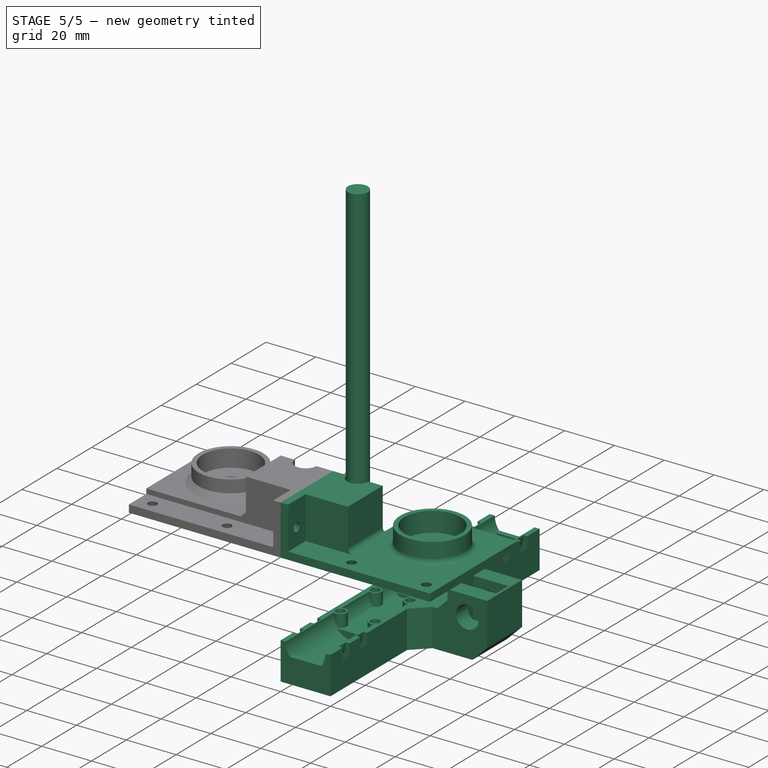
[diagram: stage 5 of 5 — iso view after this stage's code; geometry added in this stage tinted green]
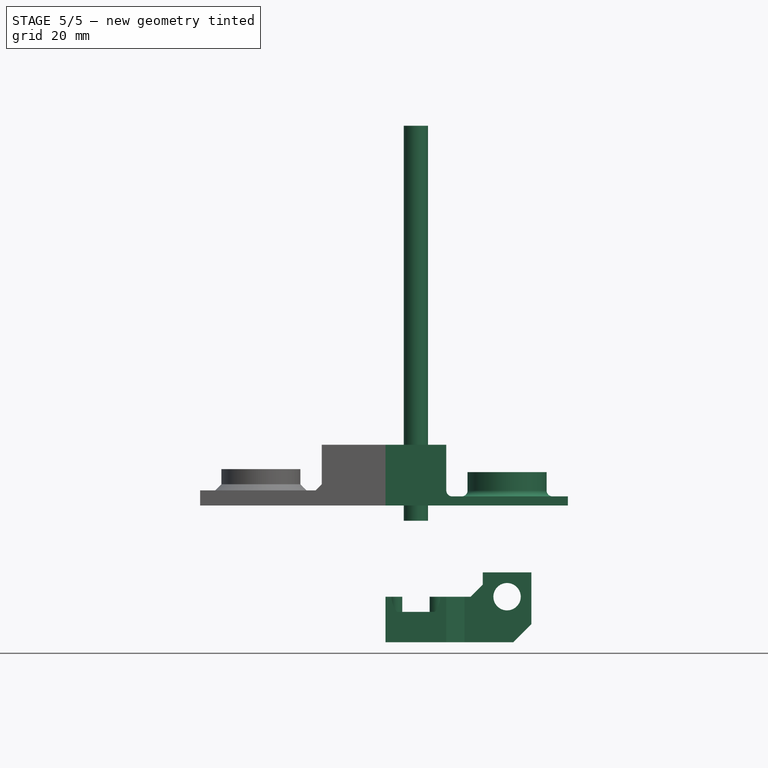
[diagram: stage 5 of 5 — front view after this stage's code; geometry added in this stage tinted green]
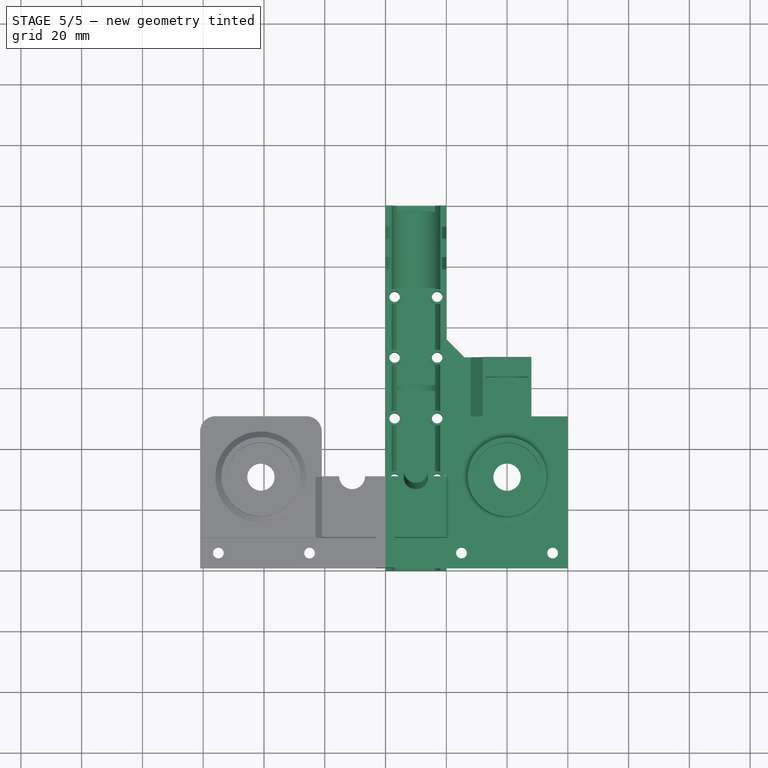
[diagram: stage 5 of 5 — top view after this stage's code; geometry added in this stage tinted green]
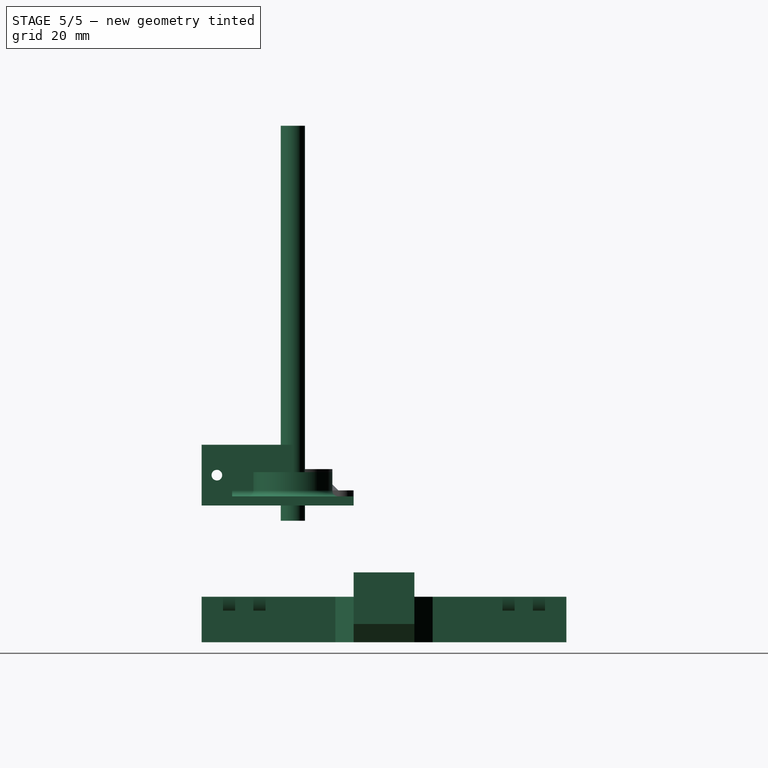
[diagram: stage 5 of 5 — right view after this stage's code; geometry added in this stage tinted green]
FEATURE [Part::Fillet] Fillet002
  Edges = 1 edges r=2: [Edge17]
FEATURE [Part::Cylinder] Cylinder010  label="foratM3-001"
  Angle = 360
  Height = 20
  Placement = pos=(3,27,30) rot=(-1,0,0;1.5708rad)
  Radius = 1.75
FEATURE [Part::Cylinder] Cylinder011  label="varilla-M8"
  Angle = 360
  Height = 130
  Placement = pos=(10,30,-5) rot=(0,0,1;0rad)
  Radius = 4
FEATURE [Part::Cylinder] Cylinder014  label="foratM3-002"
  Angle = 360
  Height = 20
  Placement = pos=(17,27,30) rot=(-1,0,0;1.5708rad)
  Radius = 1.75
FEATURE [Part::Cylinder] Cylinder016  label="foratM3-003"
  Angle = 360
  Height = 20
  Placement = pos=(17,27,50) rot=(-1,0,0;1.5708rad)
  Radius = 1.75
FEATURE [Part::Cylinder] Cylinder018  label="foratM3-004"
  Angle = 360
  Height = 20
  Placement = pos=(3,27,50) rot=(-1,0,0;1.5708rad)
  Radius = 1.75
FEATURE [Part::Cylinder] Cylinder023  label="foratM3-005"
  Angle = 360
  Height = 20
  Placement = pos=(3,27,70) rot=(-1,0,0;1.5708rad)
  Radius = 1.75
FEATURE [Part::Cylinder] Cylinder024  label="foratM3-006"
  Angle = 360
  Height = 20
  Placement = pos=(17,27,70) rot=(-1,0,0;1.5708rad)
  Radius = 1.75
FEATURE [Part::Cylinder] Cylinder025  label="foratM3-007"
  Angle = 360
  Height = 20
  Placement = pos=(17,27,90) rot=(-1,0,0;1.5708rad)
  Radius = 1.75
FEATURE [Part::Cylinder] Cylinder026  label="foratM3-008"
  Angle = 360
  Height = 20
  Placement = pos=(3,27,90) rot=(-1,0,0;1.5708rad)
  Radius = 1.75
FEATURE [Part::Cut] Cut019
  Base = -> Fusion001
  Tool = -> Cylinder010
FEATURE [Part::Cut] Cut020
  Base = -> Cut019
  Tool = -> Cylinder014
FEATURE [Part::Cut] Cut021
  Base = -> Cut020
  Tool = -> Cylinder016
FEATURE [Part::Cut] Cut022
  Base = -> Cut021
  Tool = -> Cylinder018
FEATURE [Part::Cut] Cut023
  Base = -> Cut022
  Tool = -> Cylinder023
FEATURE [Part::Cut] Cut024
  Base = -> Cut023
  Tool = -> Cylinder024
FEATURE [Part::Cut] Cut025
  Base = -> Cut024
  Tool = -> Cylinder025
FEATURE [Part::Cut] Cut026  label="y-carro-no-arrod"
  Base = -> Cut025
  Tool = -> Cylinder026
FEATURE [Part::Chamfer] Chamfer
  Base = -> Cut026
  Edges = 1 edges r=4: [Edge41]
FEATURE [Part::Chamfer] Chamfer001
  Base = -> Chamfer
  Edges = 1 edges r=6: [Edge165]
FEATURE [Part::Chamfer] Chamfer002  label="y-carro"
  Base = -> Chamfer001
  Edges = 2 edges r=6: [Edge3,Edge82]
  Placement = pos=(0,0,0) rot=(-1,0,0;1.5708rad)
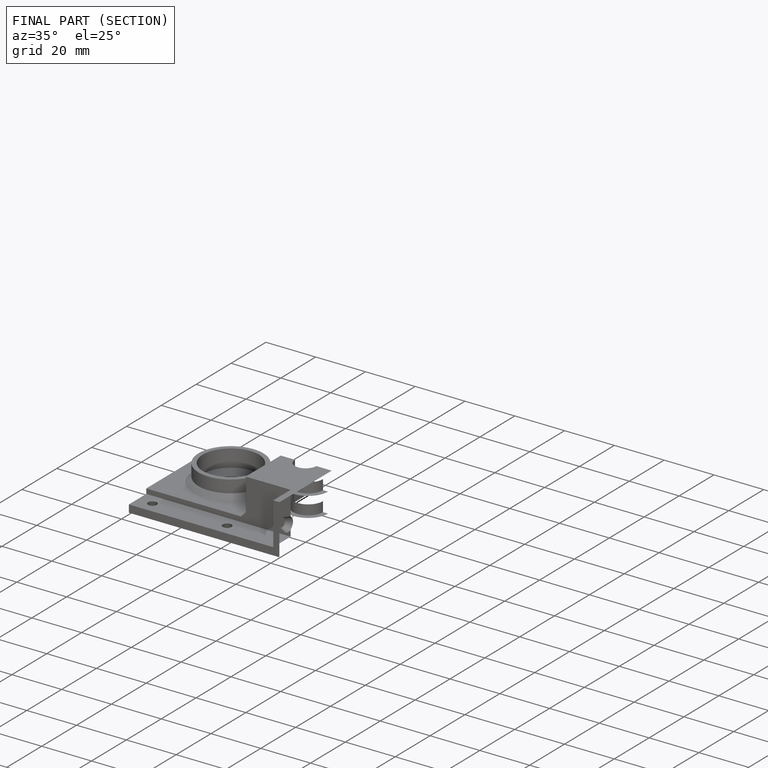
[diagram: finished part — half-section view (interior)]
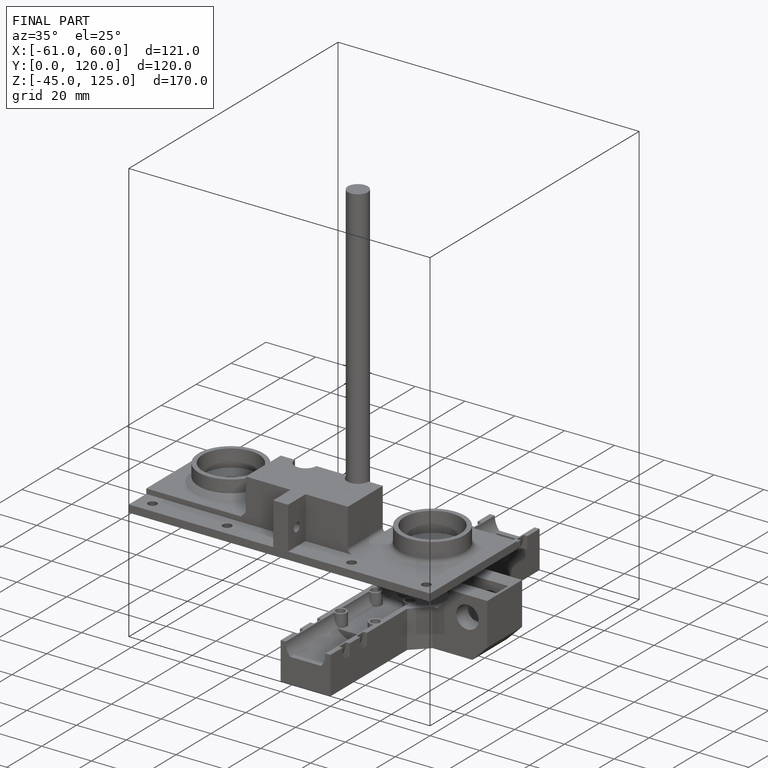
[diagram: finished part — iso view with bounding-box wireframe]
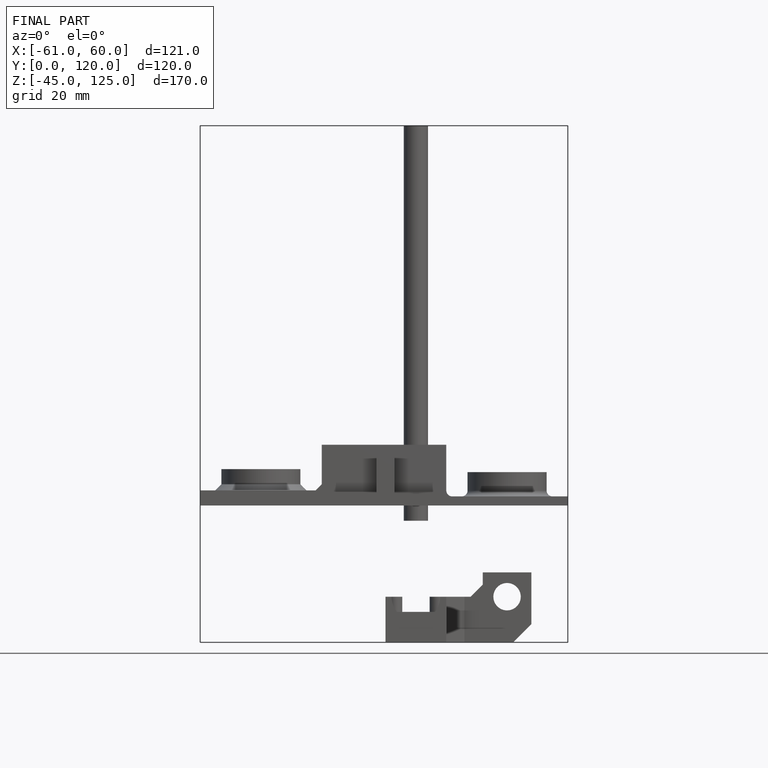
[diagram: finished part — front view with bounding-box wireframe]
